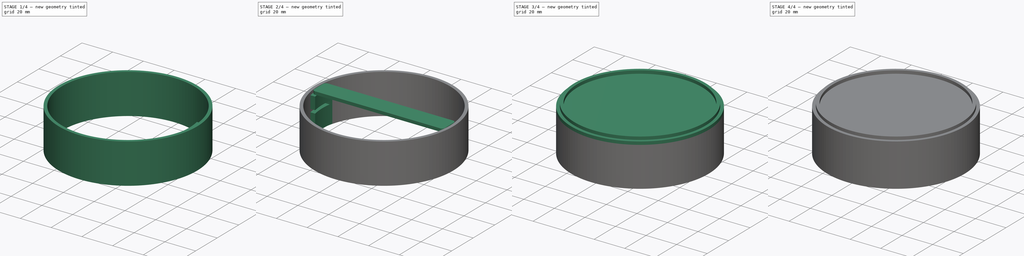
[diagram: build sequence overview — one tinted view per stage of 4, left to right]
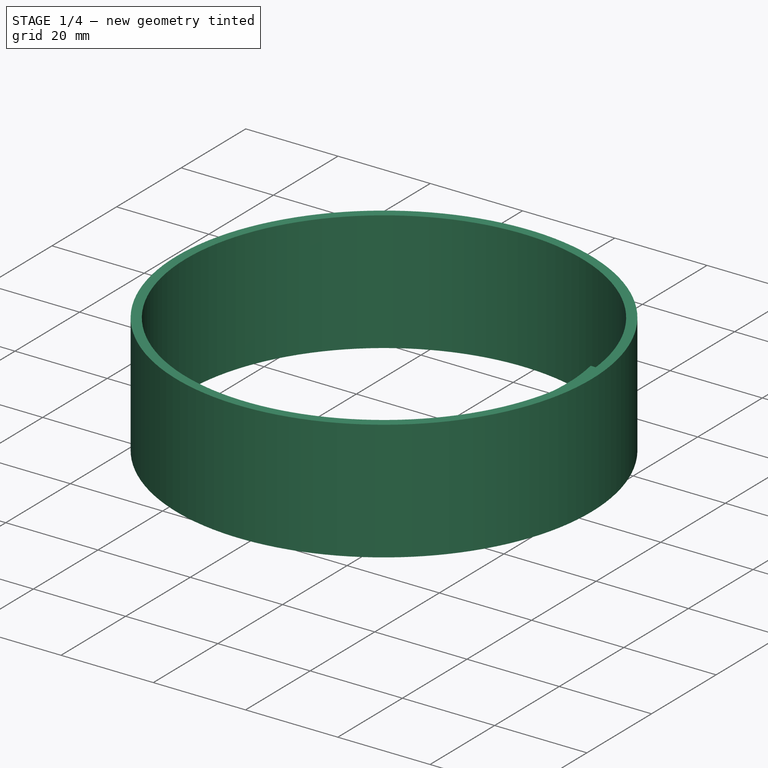
[diagram: stage 1 of 4 — iso view after this stage's code; geometry added in this stage tinted green]
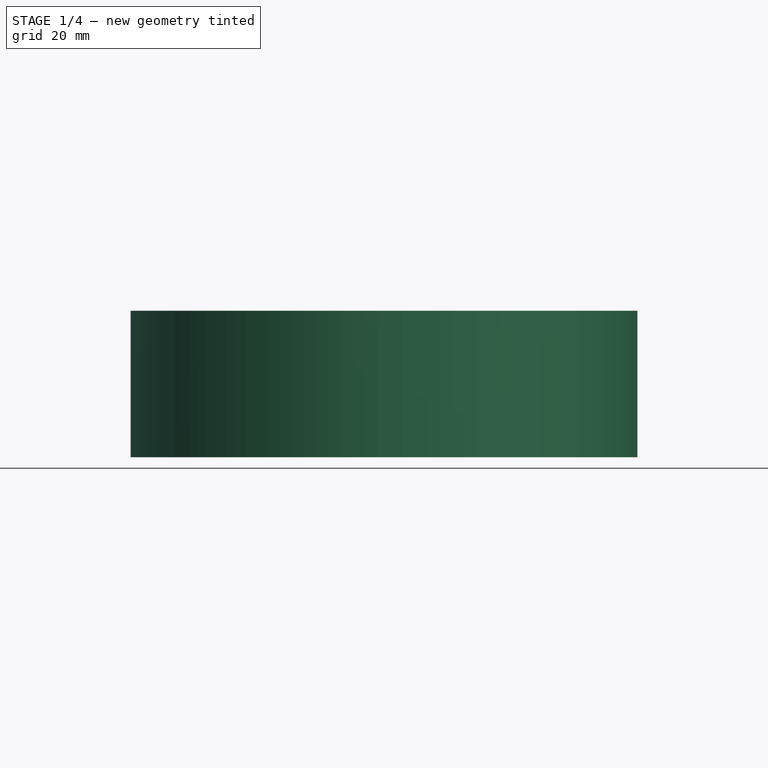
[diagram: stage 1 of 4 — front view after this stage's code; geometry added in this stage tinted green]
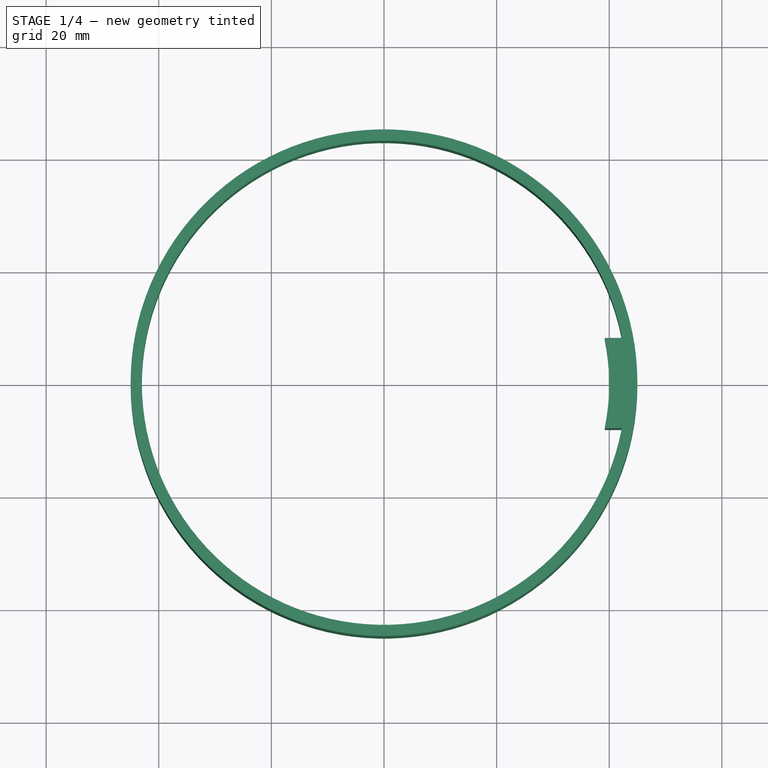
[diagram: stage 1 of 4 — top view after this stage's code; geometry added in this stage tinted green]
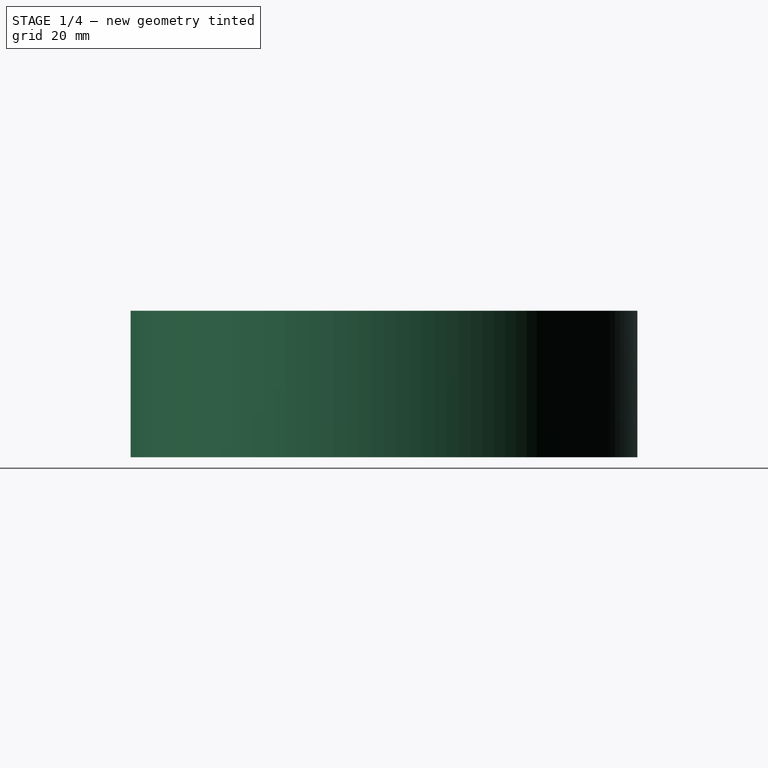
[diagram: stage 1 of 4 — right view after this stage's code; geometry added in this stage tinted green]
FCSTD DOCUMENT  (FreeCAD 0.22R35720 (Git))
Label: deskLampHolder
License: All rights reserved
LicenseURL: http://en.wikipedia.org/wiki/All_rights_reserved
objects: Sketcher::SketchObject×11, PartDesign::Pad×9, PartDesign::Body×4, PartDesign::Pocket×2, App::Part×2, PartDesign::Plane×2, Spreadsheet::Sheet×1, PartDesign::Fillet×1, PartDesign::PolarPattern×1, PartDesign::MultiTransform×1
note: 43 computed .brp shape members not serialized (recipe doc carries the construction recipe); baked Part::Feature solids carry a one-line shape summary decoded from their .brp

FEATURE [Sketcher::SketchObject] Sketch008
  FullyConstrained = true
  MapMode = 5
  Support = -> [XY_Plane006]
  expr: Constraints[1] = <<Spreadsheet>>.diameter
  expr: Constraints[3] = <<Spreadsheet>>.diameter - <<Spreadsheet>>.wallSize * 2
  sketch-geometry (2):
    g0: Circle CenterX=0 CenterY=0 CenterZ=0 NormalX=0 NormalY=0 NormalZ=1 AngleXU=0 Radius=45
    g1: Circle CenterX=0 CenterY=0 CenterZ=0 NormalX=0 NormalY=0 NormalZ=1 AngleXU=0 Radius=43
  constraints (4):
    c: Coincident(g0,g-1)
    c: Diameter(g0) = 90
    c: Coincident(g1,g0)
    c: Diameter(g1) = 86
FEATURE [PartDesign::Pad] Pad006
  Direction = (0,0,1)
  Length = 26
  Length2 = 10
  Profile = -> Sketch008
  ReferenceAxis = -> Sketch008 [N_Axis]
  Reversed = true
  Type = 0
  expr: Length = Spreadsheet.height - Spreadsheet.wallSize * 2
FEATURE [PartDesign::Body] Body005
  Group = -> [Sketch012,Pad010,Fillet]
  Origin = -> Origin010
  Placement = pos=(0,0,-10) rot=(0,0,1;0rad)
  Tip = -> Fillet
  expr: .Placement.Base.z = -Spreadsheet.imageBaseHeight
FEATURE [App::Part] Part003
  Group = -> [Body005]
  Origin = -> Origin009
FEATURE [PartDesign::Plane] DatumPlane
  AttachmentOffset = pos=(0,0,-2) rot=(0,0,1;0rad)
  Length = 108
  MapMode = 5
  Placement = pos=(0,0,-24) rot=(1,0,0;3.14159rad)
  ResizeMode = 0
  Support = -> [Pad006]
  Width = 108
  expr: .AttachmentOffset.Base.z = -Spreadsheet.wallSize
FEATURE [Sketcher::SketchObject] Sketch013
  FullyConstrained = true
  MapMode = 5
  Placement = pos=(0,0,-24) rot=(1,0,0;3.14159rad)
  Support = -> [DatumPlane]
  expr: Constraints[1] = Spreadsheet.padHolderOuterSize
  expr: Constraints[3] = Spreadsheet.padHolderInnterSize
  expr: Constraints[5] = Spreadsheet.padHolderDepth
  sketch-geometry (4):
    g0: ArcOfCircle CenterX=0 CenterY=0 CenterZ=0 NormalX=0 NormalY=0 NormalZ=1 AngleXU=0 Radius=43 StartAngle=6.09605 EndAngle=6.47032
    g1: ArcOfCircle CenterX=0 CenterY=0 CenterZ=0 NormalX=0 NormalY=0 NormalZ=1 AngleXU=0 Radius=40 StartAngle=6.08183 EndAngle=6.48454
    g2: LineSegment StartX=39.1918 StartY=8 StartZ=0 EndX=42.2493 EndY=8 EndZ=0
    g3: LineSegment StartX=39.1918 StartY=-8 StartZ=0 EndX=42.2493 EndY=-8 EndZ=0
  constraints (12):
    c: Coincident(g0,g-1)
    c: Diameter(g0) = 86
    c: Coincident(g1,g0)
    c: Diameter(g1) = 80
    c: Horizontal(g2)
    c: DistanceY(g3,g2) = 16
    c: Horizontal(g3)
    c: Vertical(g2,g3)
    c: Coincident(g1,g2)
    c: Coincident(g1,g3)
    c: Coincident(g0,g2)
    c: Coincident(g0,g3)
FEATURE [PartDesign::Pad] Pad011
  BaseFeature = -> Pad006
  Direction = (0,0,-1)
  Length = 22
  Length2 = 10
  Profile = -> Sketch013
  ReferenceAxis = -> Sketch013 [N_Axis]
  Reversed = true
  Type = 0
  expr: Length = Spreadsheet.ringHeight - Spreadsheet.wallSize * 2
FEATURE [PartDesign::Plane] DatumPlane001
  AttachmentOffset = pos=(0,0,-10) rot=(0,0,1;0rad)
  Length = 108
  MapMode = 5
  Placement = pos=(0,0,-10) rot=(0,0,1;0rad)
  ResizeMode = 0
  Support = -> [Pad011]
  Width = 108
  expr: .AttachmentOffset.Base.z = -Spreadsheet.imageBaseHeight
FEATURE [Sketcher::SketchObject] Sketch014
  FullyConstrained = true
  MapMode = 5
  Placement = pos=(0,0,-10) rot=(0,0,1;0rad)
  Support = -> [DatumPlane001]
  expr: Constraints[1] = Spreadsheet.outerWallSize
  expr: Constraints[3] = Spreadsheet.outerWallSize - Spreadsheet.wallSize * 3
  expr: Constraints[4] = Spreadsheet.padHolderDepth - Spreadsheet.wallSize
  sketch-geometry (4):
    g0: ArcOfCircle CenterX=0 CenterY=0 CenterZ=0 NormalX=0 NormalY=0 NormalZ=1 AngleXU=0 Radius=43 StartAngle=6.14319 EndAngle=6.47032
    g1: ArcOfCircle CenterX=0 CenterY=0 CenterZ=0 NormalX=0 NormalY=0 NormalZ=1 AngleXU=0 Radius=40 StartAngle=6.13262 EndAngle=6.48454
    g2: LineSegment StartX=39.1918 StartY=8 StartZ=0 EndX=42.2493 EndY=8 EndZ=0
    g3: LineSegment StartX=39.5474 StartY=-6 StartZ=0 EndX=42.5793 EndY=-6 EndZ=0
  constraints (12):
    c: Coincident(g0,g-1)
    c: Diameter(g0) = 86
    c: Coincident(g1,g0)
    c: Diameter(g1) = 80
    c: DistanceY(g3,g2) = 14
    c: Horizontal(g2)
    c: Horizontal(g3)
    c: Coincident(g1,g2)
    c: Coincident(g1,g3)
    c: Coincident(g0,g2)
    c: Coincident(g0,g3)
    c: DistanceY(g1,g0) = 6
FEATURE [PartDesign::Pocket] Pocket001
  BaseFeature = -> Pad011
  Direction = (0,0,-1)
  Length = 2
  Length2 = 5
  Profile = -> Sketch014
  ReferenceAxis = -> Sketch014 [N_Axis]
  Type = 0
  expr: Length = Spreadsheet.wallSize
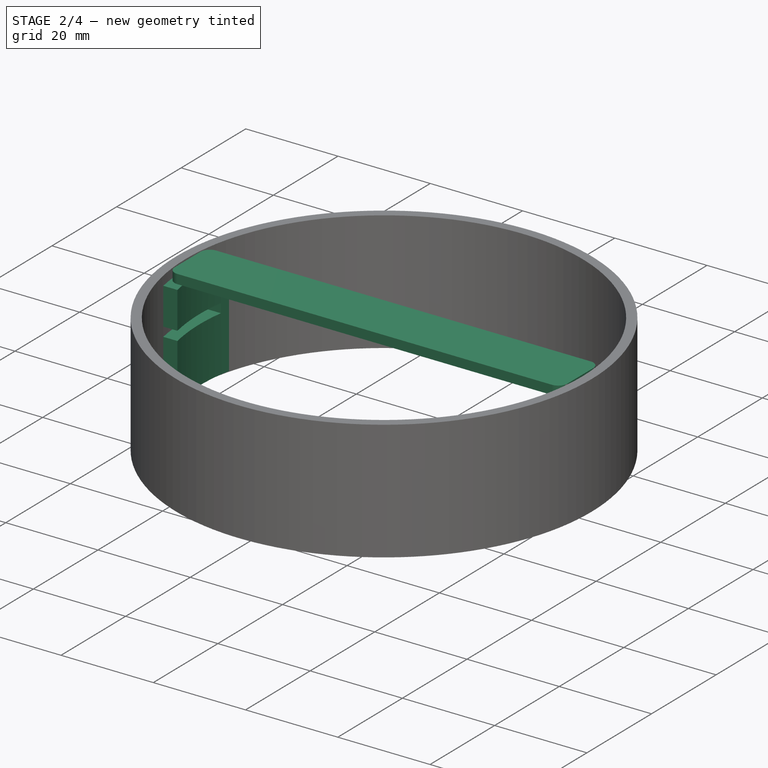
[diagram: stage 2 of 4 — iso view after this stage's code; geometry added in this stage tinted green]
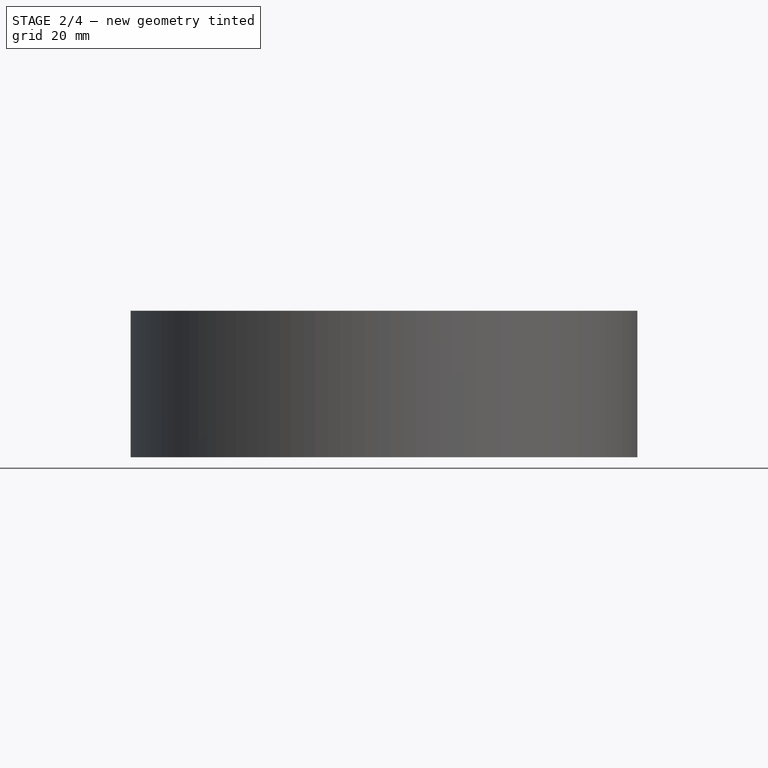
[diagram: stage 2 of 4 — front view after this stage's code; geometry added in this stage tinted green]
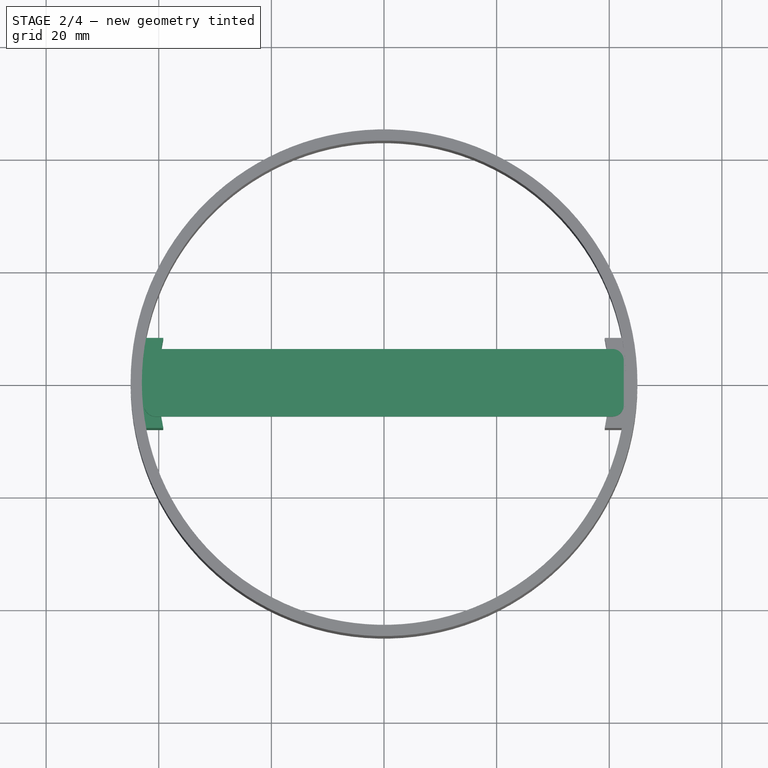
[diagram: stage 2 of 4 — top view after this stage's code; geometry added in this stage tinted green]
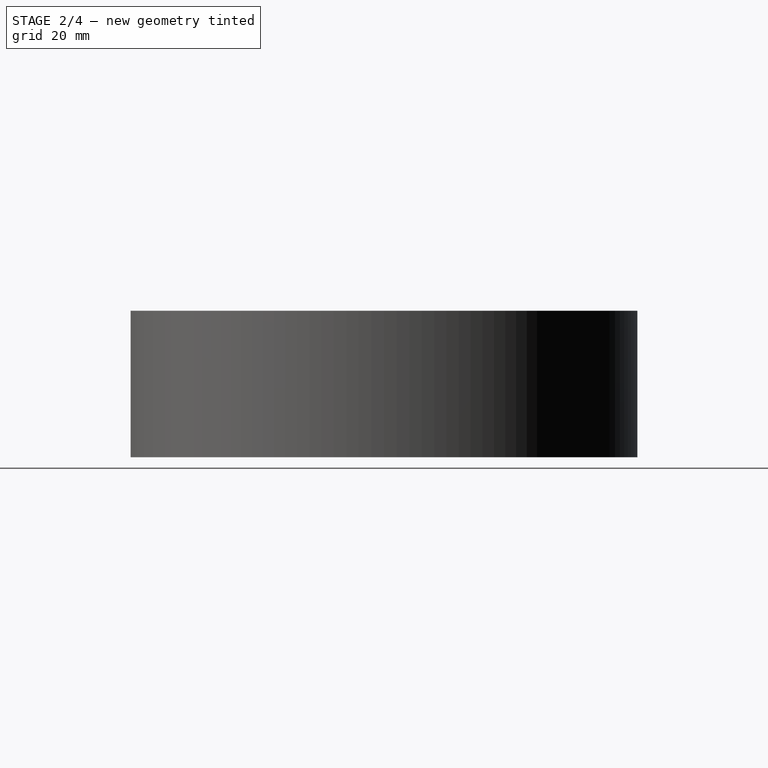
[diagram: stage 2 of 4 — right view after this stage's code; geometry added in this stage tinted green]
FEATURE [PartDesign::Body] Body004  label="bottomCover"
  Group = -> [Sketch009,Pad007,Sketch011,Pad009]
  Origin = -> Origin008
  Placement = pos=(0,0,-28) rot=(0,0,1;0rad)
  Tip = -> Pad009
  expr: .Placement.Base.z = -(Spreadsheet.height - Spreadsheet.wallSize)
FEATURE [Sketcher::SketchObject] Sketch012
  FullyConstrained = true
  MapMode = 5
  Support = -> [XY_Plane010]
  expr: Constraints[10] = Spreadsheet.holderWidth
  expr: Constraints[12] = Spreadsheet.diameter - Spreadsheet.wallSize * 2
  sketch-geometry (6):
    g0: LineSegment StartX=-42.5793 StartY=-6 StartZ=0 EndX=-42.5793 EndY=6 EndZ=0
    g1: LineSegment StartX=-42.5793 StartY=6 StartZ=0 EndX=42.5793 EndY=6 EndZ=0
    g2: LineSegment StartX=42.5793 StartY=6 StartZ=0 EndX=42.5793 EndY=-6 EndZ=0
    g3: LineSegment StartX=42.5793 StartY=-6 StartZ=0 EndX=-42.5793 EndY=-6 EndZ=0
    g4: GeomPoint X=0 Y=0 Z=0
    g5: Circle CenterX=0 CenterY=0 CenterZ=0 NormalX=0 NormalY=0 NormalZ=1 AngleXU=0 Radius=43
  constraints (14):
    c: Coincident(g0,g1)
    c: Coincident(g1,g2)
    c: Coincident(g2,g3)
    c: Coincident(g3,g0)
    c: Horizontal(g1)
    c: Horizontal(g3)
    c: Vertical(g0)
    c: Vertical(g2)
    c: Symmetric(g1,g0,g4)
    c: Coincident(g4,g-1)
    c: DistanceY(g2,g2) = 12
    c: Coincident(g5,g4)
    c: Diameter(g5) = 86
    c: PointOnObject(g1,g5)
FEATURE [PartDesign::Pad] Pad010
  Direction = (0,0,1)
  Length = 2
  Length2 = 10
  Profile = -> Sketch012
  ReferenceAxis = -> Sketch012 [N_Axis]
  Reversed = true
  Type = 0
  expr: Length = Spreadsheet.wallSize
FEATURE [PartDesign::Fillet] Fillet
  Base = -> Pad010 [Edge2,Edge1,Edge5,Edge8]
  BaseFeature = -> Pad010
  Radius = 2
  SupportTransform = false
  UseAllEdges = false
FEATURE [PartDesign::PolarPattern] PolarPattern
  Angle = 360
  Axis = -> Z_Axis006
  Mode = 0
  Occurrences = 2
  Offset = 120
FEATURE [PartDesign::MultiTransform] MultiTransform
  BaseFeature = -> Pocket001
  Originals = -> [Pad011,Pocket001]
  Transformations = -> [PolarPattern]
FEATURE [PartDesign::Body] Body003  label="ring"
  Group = -> [Sketch008,Pad006,DatumPlane,Sketch013,Pad011,DatumPlane001,Sketch014,Pocket001,MultiTransform,PolarPattern]
  Origin = -> Origin006
  Tip = -> MultiTransform
FEATURE [App::Part] Part  label="Body"
  Group = -> [Body,Body004,Body003]
  Origin = -> Origin
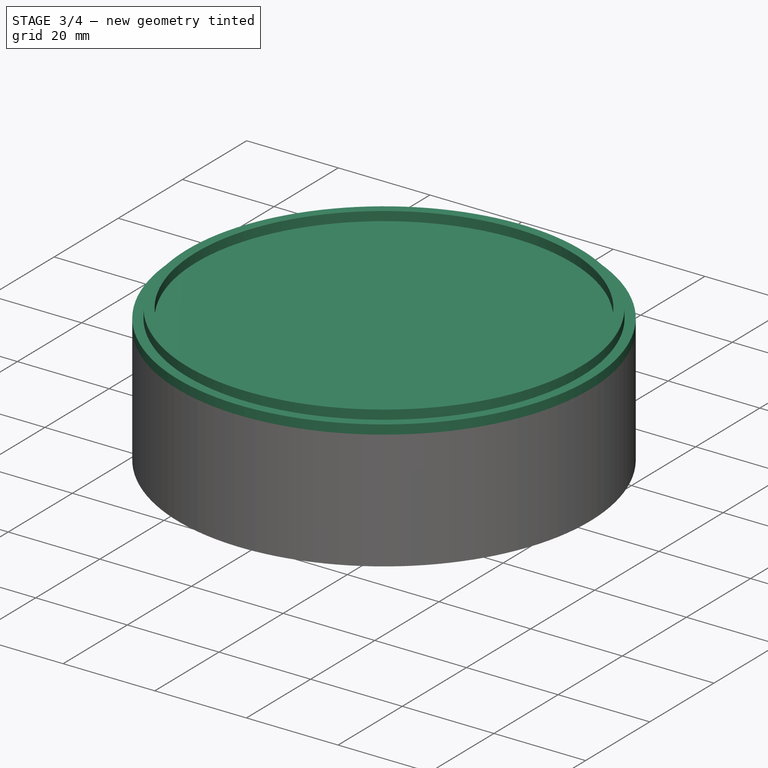
[diagram: stage 3 of 4 — iso view after this stage's code; geometry added in this stage tinted green]
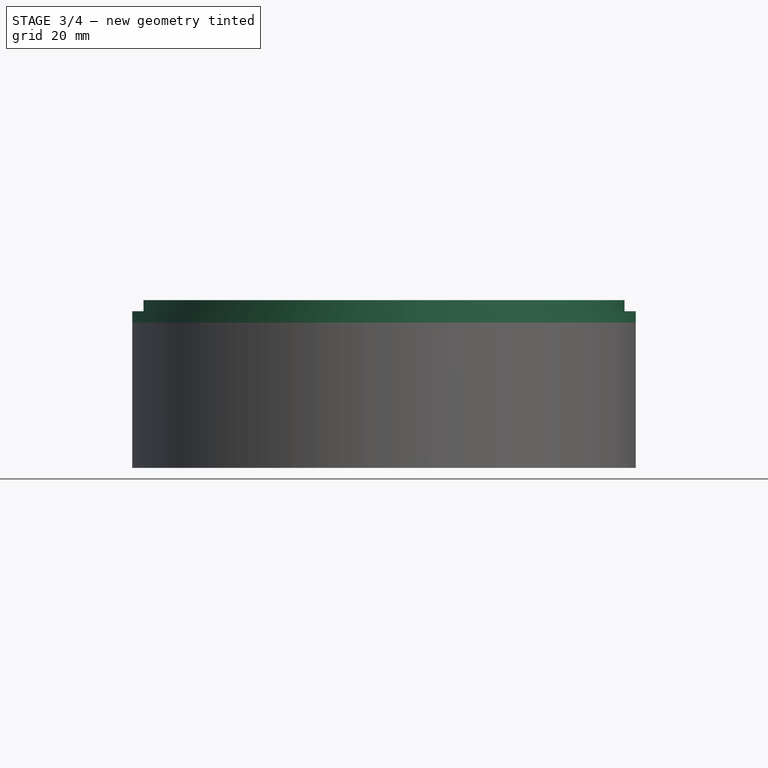
[diagram: stage 3 of 4 — front view after this stage's code; geometry added in this stage tinted green]
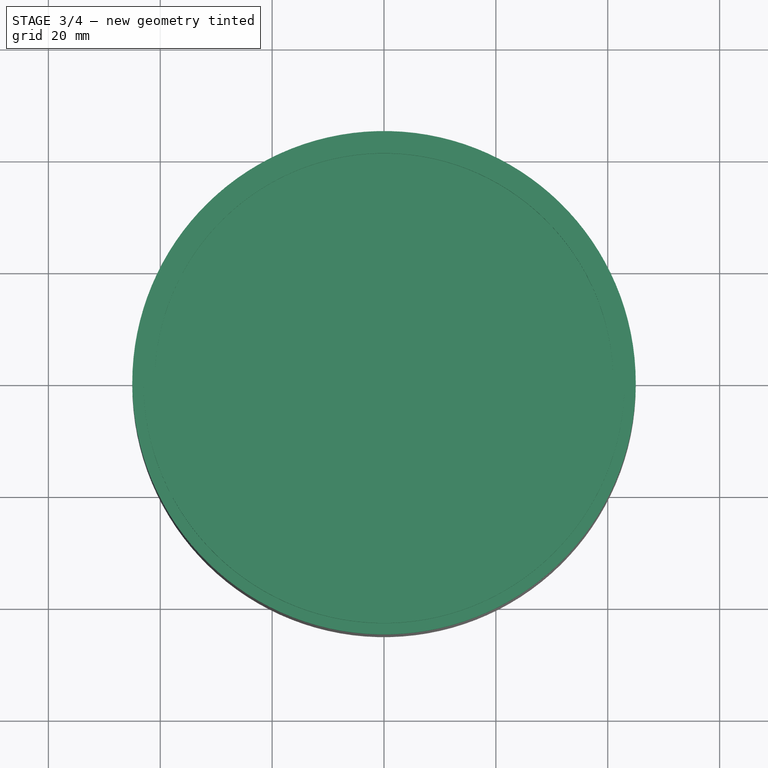
[diagram: stage 3 of 4 — top view after this stage's code; geometry added in this stage tinted green]
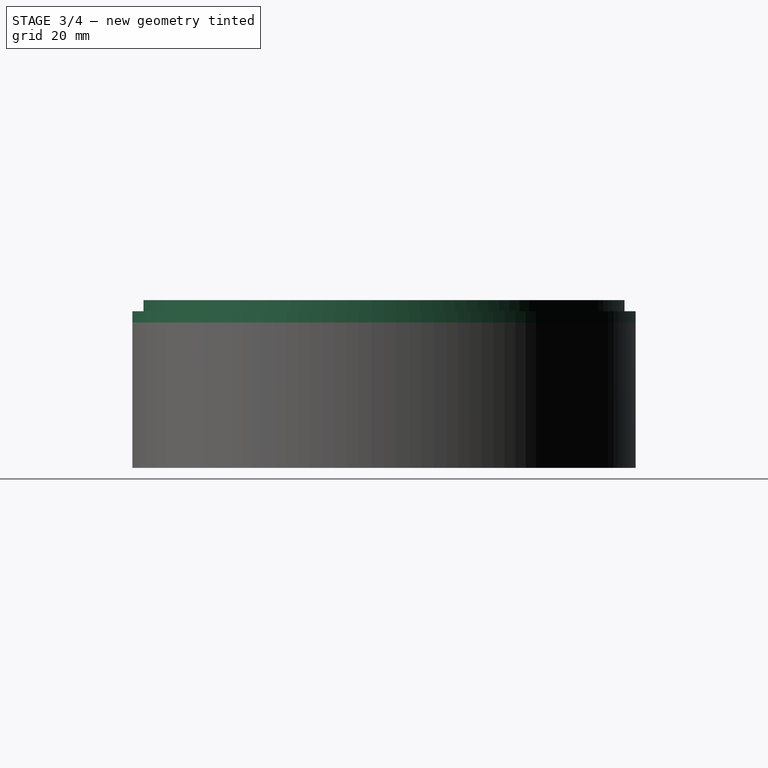
[diagram: stage 3 of 4 — right view after this stage's code; geometry added in this stage tinted green]
FEATURE [Sketcher::SketchObject] Sketch
  FullyConstrained = true
  MapMode = 5
  Support = -> [XY_Plane001]
  expr: Constraints[1] = <<Spreadsheet>>.diameter
  sketch-geometry (1):
    g0: Circle CenterX=0 CenterY=0 CenterZ=0 NormalX=0 NormalY=0 NormalZ=1 AngleXU=0 Radius=45
  constraints (2):
    c: Coincident(g0,g-1)
    c: Diameter(g0) = 90
FEATURE [Spreadsheet::Sheet] Spreadsheet
  cells = B2='diameter; C2(diameter)=90; E2='touchWidth; F2(touchWidth)=24; B3='height; C3(height)=30; E3='touchHeight; F3(touchHeight)=23.7; B4='wallSize; C4(wallSize)=2; E4='touchThickness; F4(touchThickness)=1.4; B5='outerWallSize; C5(outerWallSize)==diameter - 2 * wallSize; E5='touchDistance; F5(touchDistance)=26; B6='innerWallSize; C6(innerWallSize)==outerWallSize - 2 * wallSize; E6='touchClearance; F6(touchClearance)=2; B7='holeWidth; C7(holeWidth)=80; B8='holdeDepth; C8(holeDepth)=4; B9='ringHeight; C9(ringHeight)==height - wallSize * 2; E9='powerConnectorWidth; F9(powerConnectorWidth)=9; E10='powerConnectorHeight; F10(powerConnectorHeight)=6.5; B11='circuitBoardWidth; C11(circuitBoardWidth)=32; E11='powerConnectorCircle; F11(powerConnectorCircle)=7.8; B12='circuitBoardHeight; C12(circuitBoardHeight)=21; B14='holderWidth; C14(holderWidth)=12; B15='imageBaseHeight; C15(imageBaseHeight)=10; B17='padHolderInnterSize; C17(padHolderInnterSize)==diameter - wallSize * 5; B18='padHolderOuterSize; C18(padHolderOuterSize)==diameter - wallSize * 2; B19='padHolderDepth; C19(padHolderDepth)==holderWidth + wallSize * 2
FEATURE [PartDesign::Pad] Pad
  Direction = (0,0,1)
  Length = 2
  Length2 = 10
  Profile = -> Sketch
  ReferenceAxis = -> Sketch [N_Axis]
  Type = 0
  expr: Length = <<Spreadsheet>>.wallSize
FEATURE [Sketcher::SketchObject] Sketch004
  FullyConstrained = true
  MapMode = 5
  Placement = pos=(0,0,2) rot=(0,0,1;0rad)
  expr: Constraints[10] = Spreadsheet.holeWidth
  expr: Constraints[11] = Spreadsheet.holeDepth
  sketch-geometry (5):
    g0: LineSegment StartX=-40 StartY=-2 StartZ=0 EndX=-40 EndY=2 EndZ=0
    g1: LineSegment StartX=-40 StartY=2 StartZ=0 EndX=40 EndY=2 EndZ=0
    g2: LineSegment StartX=40 StartY=2 StartZ=0 EndX=40 EndY=-2 EndZ=0
    g3: LineSegment StartX=40 StartY=-2 StartZ=0 EndX=-40 EndY=-2 EndZ=0
    g4: GeomPoint X=0 Y=0 Z=0
  constraints (12):
    c: Coincident(g0,g1)
    c: Coincident(g1,g2)
    c: Coincident(g2,g3)
    c: Coincident(g3,g0)
    c: Horizontal(g1)
    c: Horizontal(g3)
    c: Vertical(g0)
    c: Vertical(g2)
    c: Symmetric(g1,g0,g4)
    c: Coincident(g4,g-1)
    c: DistanceX(g1,g1) = 80
    c: DistanceY(g2,g2) = 4
FEATURE [PartDesign::Pocket] Pocket
  BaseFeature = -> Pad
  Direction = (0,0,-1)
  Length = 5
  Length2 = 5
  Profile = -> Sketch004
  ReferenceAxis = -> Sketch004 [N_Axis]
  Type = 1
FEATURE [Sketcher::SketchObject] Sketch009
  FullyConstrained = true
  MapMode = 5
  Support = -> [XY_Plane008]
  expr: Constraints[1] = Spreadsheet.diameter
  sketch-geometry (1):
    g0: Circle CenterX=0 CenterY=0 CenterZ=0 NormalX=0 NormalY=0 NormalZ=1 AngleXU=0 Radius=45
  constraints (2):
    c: Coincident(g0,g-1)
    c: Diameter(g0) = 90
FEATURE [PartDesign::Pad] Pad007
  Direction = (0,0,1)
  Length = 2
  Length2 = 10
  Profile = -> Sketch009
  ReferenceAxis = -> Sketch009 [N_Axis]
  Type = 0
  expr: Length = Spreadsheet.wallSize
FEATURE [PartDesign::Body] Body  label="topCover"
  Group = -> [Sketch,Pad,Sketch004,Pocket,Sketch005,Pad004,Sketch007,Pad005,Sketch010,Pad008]
  Origin = -> Origin001
  Tip = -> Pad008
FEATURE [Sketcher::SketchObject] Sketch011
  FullyConstrained = true
  MapMode = 5
  Placement = pos=(0,0,2) rot=(0,0,1;0rad)
  Support = -> [Pad007]
  expr: Constraints[2] = Spreadsheet.diameter - Spreadsheet.wallSize * 2
  expr: Constraints[3] = Spreadsheet.diameter - Spreadsheet.wallSize * 4
  sketch-geometry (2):
    g0: Circle CenterX=0 CenterY=0 CenterZ=0 NormalX=0 NormalY=0 NormalZ=1 AngleXU=0 Radius=41
    g1: Circle CenterX=0 CenterY=0 CenterZ=0 NormalX=0 NormalY=0 NormalZ=1 AngleXU=0 Radius=43
  constraints (4):
    c: Coincident(g0,g-1)
    c: Coincident(g1,g0)
    c: Diameter(g1) = 86
    c: Diameter(g0) = 82
FEATURE [PartDesign::Pad] Pad009
  BaseFeature = -> Pad007
  Direction = (0,0,1)
  Length = 2
  Length2 = 10
  Profile = -> Sketch011
  ReferenceAxis = -> Sketch011 [N_Axis]
  Type = 0
  expr: Length = Spreadsheet.wallSize
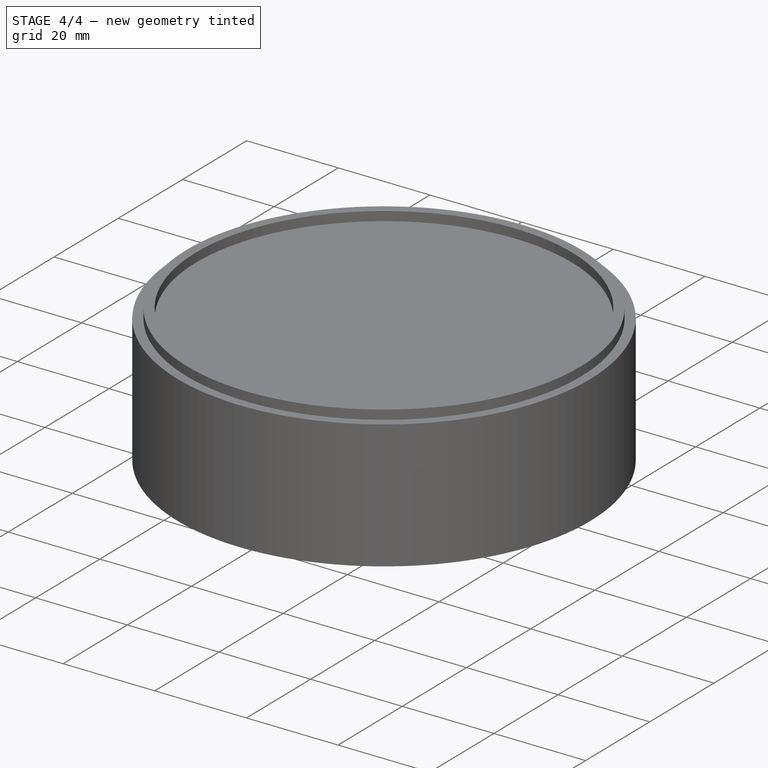
[diagram: stage 4 of 4 — iso view after this stage's code; geometry added in this stage tinted green]
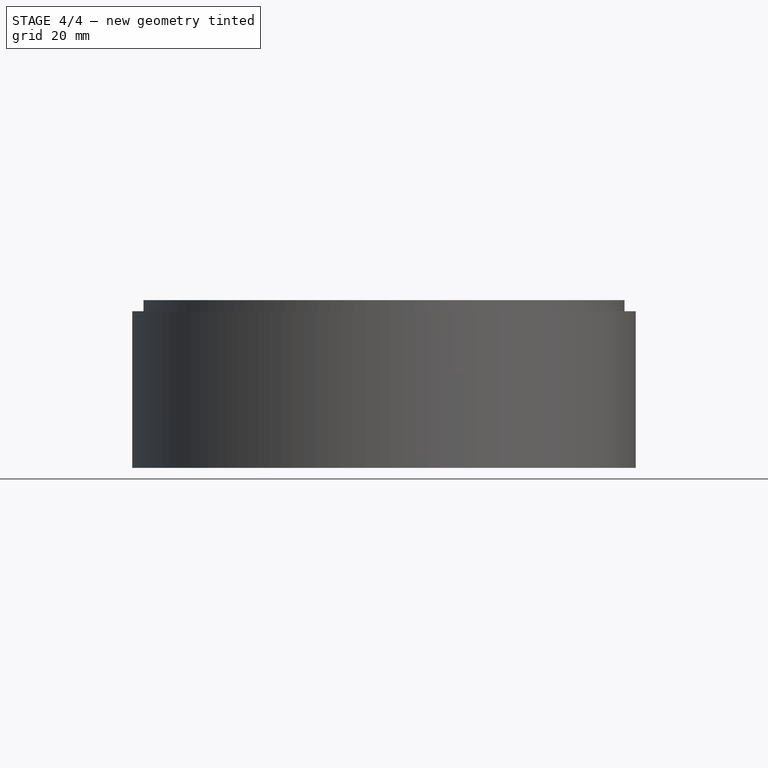
[diagram: stage 4 of 4 — front view after this stage's code; geometry added in this stage tinted green]
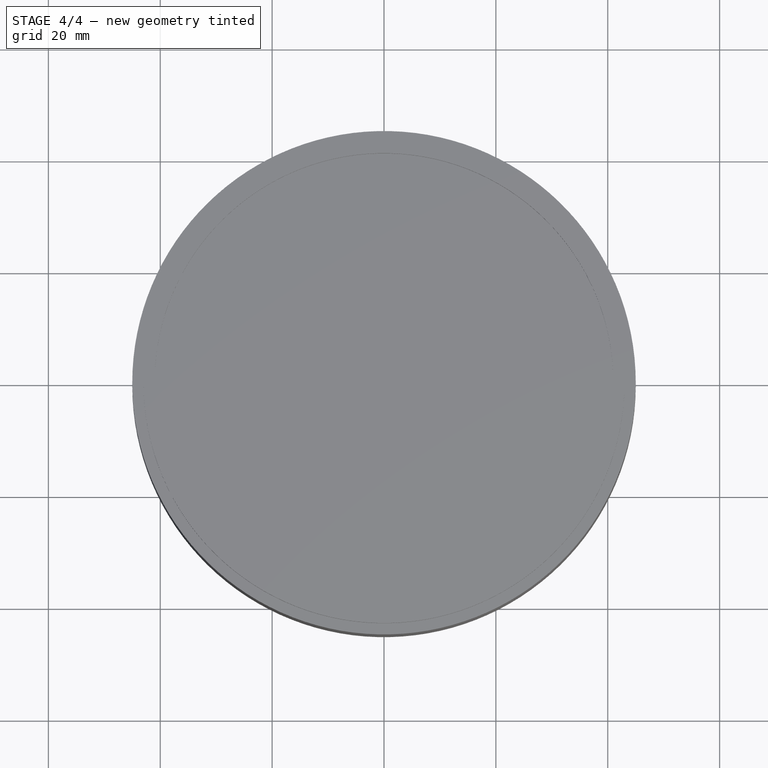
[diagram: stage 4 of 4 — top view after this stage's code; geometry added in this stage tinted green]
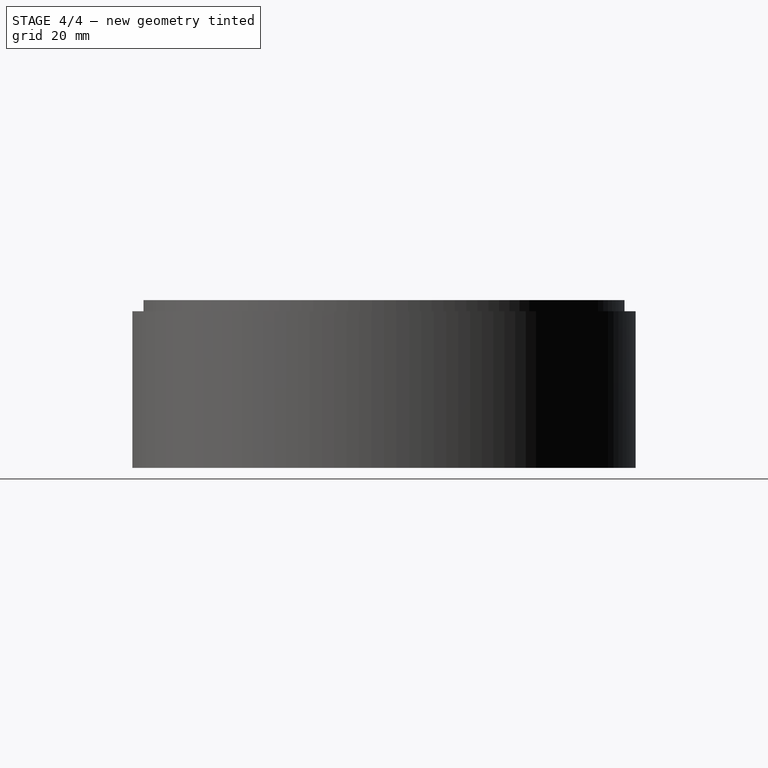
[diagram: stage 4 of 4 — right view after this stage's code; geometry added in this stage tinted green]
FEATURE [Sketcher::SketchObject] Sketch005
  FullyConstrained = true
  MapMode = 5
  Placement = pos=(0,0,0) rot=(1,0,0;3.14159rad)
  Support = -> [Pocket]
  expr: Constraints[20] = Spreadsheet.wallSize
  expr: Constraints[21] = Spreadsheet.wallSize
  expr: Constraints[22] = Spreadsheet.touchDistance
  expr: Constraints[23] = Spreadsheet.touchHeight
  expr: Constraints[4] = Spreadsheet.touchWidth
  sketch-geometry (11):
    g0: LineSegment StartX=-12 StartY=14.15 StartZ=0 EndX=12 EndY=14.15 EndZ=0
    g1: LineSegment StartX=12 StartY=37.85 StartZ=0 EndX=-12 EndY=37.85 EndZ=0
    g2: GeomPoint X=0 Y=26 Z=0
    g3: LineSegment StartX=12 StartY=37.85 StartZ=0 EndX=14 EndY=37.85 EndZ=0
    g4: LineSegment StartX=14 StartY=37.85 StartZ=0 EndX=14 EndY=14.15 EndZ=0
    g5: LineSegment StartX=14 StartY=14.15 StartZ=0 EndX=12 EndY=14.15 EndZ=0
    g6: LineSegment StartX=12 StartY=14.15 StartZ=0 EndX=12 EndY=37.85 EndZ=0
    g7: LineSegment StartX=-12 StartY=37.85 StartZ=0 EndX=-14 EndY=37.85 EndZ=0
    g8: LineSegment StartX=-14 StartY=37.85 StartZ=0 EndX=-14 EndY=14.15 EndZ=0
    g9: LineSegment StartX=-14 StartY=14.15 StartZ=0 EndX=-12 EndY=14.15 EndZ=0
    g10: LineSegment StartX=-12 StartY=14.15 StartZ=0 EndX=-12 EndY=37.85 EndZ=0
  constraints (29):
    c: Horizontal(g0)
    c: Horizontal(g1)
    c: Symmetric(g0,g1,g2)
    c: PointOnObject(g2,g-2)
    c: DistanceX(g1,g1) = 24
    c: Coincident(g3,g4)
    c: Coincident(g4,g5)
    c: Coincident(g5,g6)
    c: Coincident(g6,g3)
    c: Horizontal(g3)
    c: Horizontal(g5)
    c: Vertical(g4)
    c: Coincident(g7,g8)
    c: Coincident(g8,g9)
    c: Coincident(g9,g10)
    c: Coincident(g10,g7)
    c: Horizontal(g7)
    c: Horizontal(g9)
    c: Vertical(g8)
    c: Coincident(g0,g5)
    c: DistanceX(g3,g3) = 2
    c: DistanceX(g7,g7) = 2
    c: DistanceY(g-1,g2) = 26
    c: DistanceY(g0,g1) = 23.7
    c: Coincident(g1,g3)
    c: Vertical(g6)
    c: Coincident(g1,g7)
    c: Vertical(g10)
    c: Coincident(g9,g0)
FEATURE [PartDesign::Pad] Pad004
  BaseFeature = -> Pocket
  Direction = (0,0,-1)
  Length = 1.4
  Length2 = 10
  Profile = -> Sketch005
  ReferenceAxis = -> Sketch005 [N_Axis]
  Type = 0
  expr: Length = Spreadsheet.touchThickness
FEATURE [Sketcher::SketchObject] Sketch007
  FullyConstrained = true
  MapMode = 5
  Placement = pos=(0,0,-1.4) rot=(1,0,0;3.14159rad)
  Support = -> [Pad004]
  expr: Constraints[20] = Spreadsheet.wallSize
  expr: Constraints[21] = Spreadsheet.wallSize
  expr: Constraints[23] = Spreadsheet.touchHeight
  expr: Constraints[25] = Spreadsheet.touchWidth
  expr: Constraints[26] = Spreadsheet.touchDistance
  expr: Constraints[29] = Spreadsheet.touchClearance
  sketch-geometry (17):
    g0: LineSegment StartX=-12 StartY=14.15 StartZ=0 EndX=-12 EndY=37.85 EndZ=0
    g1: LineSegment StartX=12 StartY=37.85 StartZ=0 EndX=12 EndY=14.15 EndZ=0
    g2: GeomPoint X=0 Y=26 Z=0
    g3: LineSegment StartX=-12 StartY=37.85 StartZ=0 EndX=-14 EndY=37.85 EndZ=0
    g4: LineSegment StartX=-14 StartY=37.85 StartZ=0 EndX=-14 EndY=14.15 EndZ=0
    g5: LineSegment StartX=-14 StartY=14.15 StartZ=0 EndX=-12 EndY=14.15 EndZ=0
    g6: LineSegment StartX=12 StartY=14.15 StartZ=0 EndX=14 EndY=14.15 EndZ=0
    g7: LineSegment StartX=14 StartY=14.15 StartZ=0 EndX=14 EndY=37.85 EndZ=0
    g8: LineSegment StartX=14 StartY=37.85 StartZ=0 EndX=12 EndY=37.85 EndZ=0
    g9: LineSegment StartX=-10 StartY=37.85 StartZ=0 EndX=-10 EndY=14.15 EndZ=0
    g10: LineSegment StartX=10 StartY=37.85 StartZ=0 EndX=10 EndY=14.15 EndZ=0
    g11: LineSegment StartX=-12 StartY=37.85 StartZ=0 EndX=-10 EndY=37.85 EndZ=0
    g12: LineSegment StartX=-10 StartY=37.85 StartZ=0 EndX=10 EndY=37.85 EndZ=0
    g13: LineSegment StartX=10 StartY=37.85 StartZ=0 EndX=12 EndY=37.85 EndZ=0
    g14: LineSegment StartX=12 StartY=14.15 StartZ=0 EndX=10 EndY=14.15 EndZ=0
    g15: LineSegment StartX=10 StartY=14.15 StartZ=0 EndX=-10 EndY=14.15 EndZ=0
    g16: LineSegment StartX=-10 StartY=14.15 StartZ=0 EndX=-12 EndY=14.15 EndZ=0
  constraints (44):
    c: Coincident(g0,g11)
    c: Coincident(g13,g1)
    c: Coincident(g1,g14)
    c: Coincident(g16,g0)
    c: Vertical(g0)
    c: Vertical(g1)
    c: Symmetric(g13,g0,g2)
    c: PointOnObject(g2,g-2)
    c: Coincident(g3,g0)
    c: Coincident(g4,g3)
    c: Vertical(g4)
    c: Coincident(g5,g4)
    c: Coincident(g5,g0)
    c: Coincident(g6,g1)
    c: Horizontal(g6)
    c: Coincident(g7,g6)
    c: Vertical(g7)
    c: Coincident(g8,g7)
    c: Coincident(g8,g13)
    c: Horizontal(g8)
    c: DistanceX(g8,g8) = 2
    c: DistanceX(g3,g3) = 2
    c: Horizontal(g3)
    c: DistanceY(g1,g1) = 23.7
    c: Horizontal(g5)
    c: DistanceX(g11,g13) = 24
    c: DistanceY(g-1,g2) = 26
    c: Vertical(g9)
    c: Vertical(g10)
    c: DistanceX(g10,g1) = 2
    c: Symmetric(g10,g9,g-2)
    c: Coincident(g11,g12)
    c: Horizontal(g11)
    c: Coincident(g12,g13)
    c: Horizontal(g13)
    c: Coincident(g14,g15)
    c: Horizontal(g14)
    c: PointOnObject(g9,g14)
    c: Coincident(g15,g16)
    c: Horizontal(g16)
    c: Coincident(g9,g15)
    c: Coincident(g9,g11)
    c: Coincident(g10,g12)
    c: Coincident(g10,g14)
FEATURE [PartDesign::Pad] Pad005
  BaseFeature = -> Pad004
  Direction = (0,0,-1)
  Length = 2
  Length2 = 10
  Profile = -> Sketch007
  ReferenceAxis = -> Sketch007 [N_Axis]
  Type = 0
  expr: Length = Spreadsheet.wallSize
FEATURE [Sketcher::SketchObject] Sketch010
  FullyConstrained = true
  MapMode = 5
  Placement = pos=(0,0,0) rot=(1,0,0;3.14159rad)
  Support = -> [Pad005]
  expr: Constraints[2] = Spreadsheet.diameter - Spreadsheet.wallSize * 4
  expr: Constraints[3] = Spreadsheet.diameter - Spreadsheet.wallSize * 2
  sketch-geometry (2):
    g0: Circle CenterX=0 CenterY=0 CenterZ=0 NormalX=0 NormalY=0 NormalZ=1 AngleXU=0 Radius=41
    g1: Circle CenterX=0 CenterY=0 CenterZ=0 NormalX=0 NormalY=0 NormalZ=1 AngleXU=0 Radius=43
  constraints (4):
    c: Coincident(g0,g-1)
    c: Coincident(g1,g0)
    c: Diameter(g0) = 82
    c: Diameter(g1) = 86
FEATURE [PartDesign::Pad] Pad008
  BaseFeature = -> Pad005
  Direction = (0,0,-1)
  Length = 2
  Length2 = 10
  Profile = -> Sketch010
  ReferenceAxis = -> Sketch010 [N_Axis]
  Type = 0
  expr: Length = Spreadsheet.wallSize
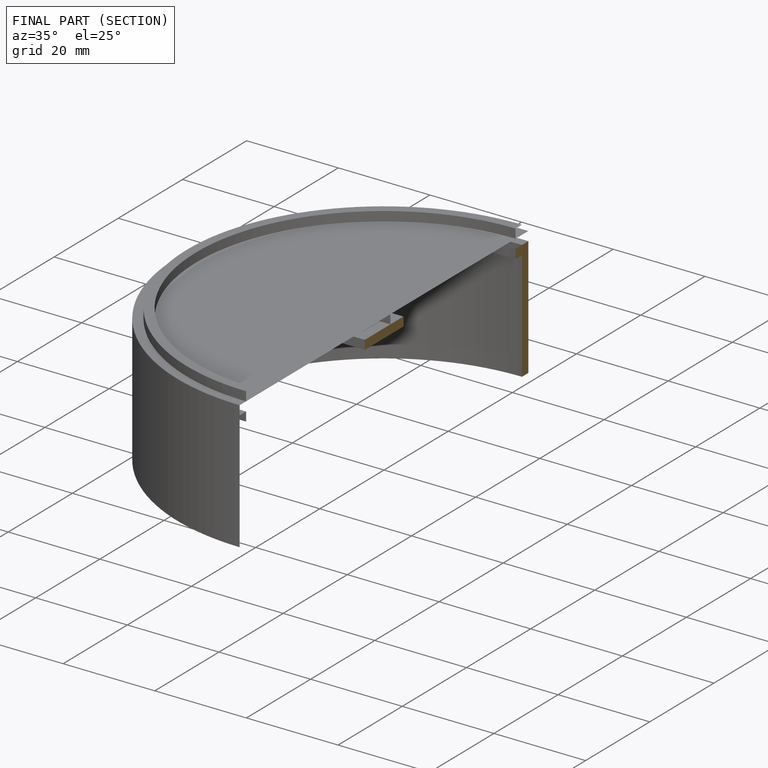
[diagram: finished part — half-section view (interior)]
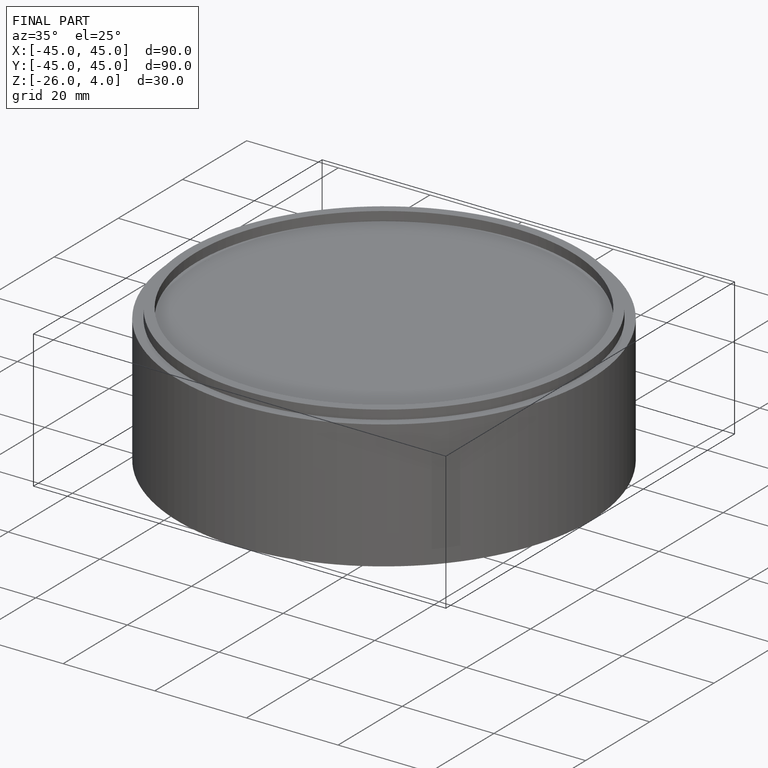
[diagram: finished part — iso view with bounding-box wireframe]
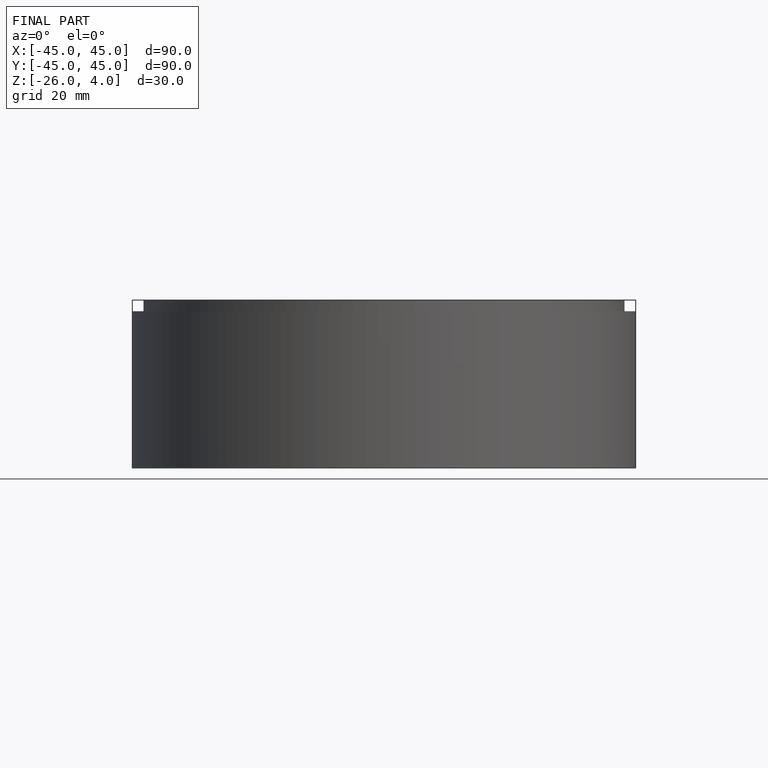
[diagram: finished part — front view with bounding-box wireframe]
